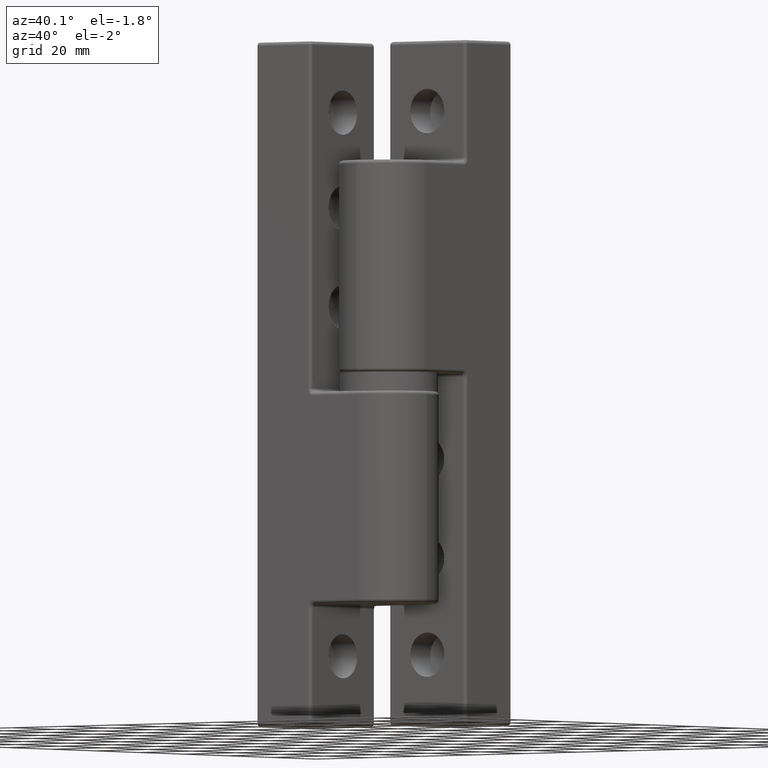
[diagram: clean part render]
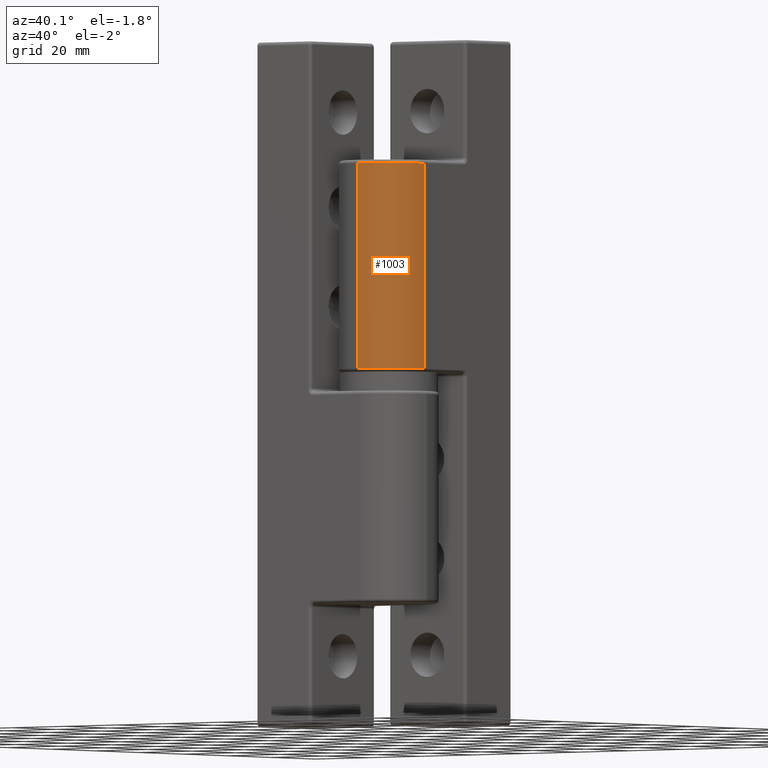
[diagram: same view with one face highlighted and labeled with its STEP entity id]
A machine part, auxiliary view. The second image highlights one B-rep face of the part: STEP entity #1003.
In plain terms, the highlighted cylindrical surface (partial cylindrical patch) has radius 14 mm, axis along (-0, 0, -1).
Its self-contained STEP definition (entity closure, byte-faithful):
#151=LINE('',#1859,#195);
#152=LINE('',#1861,#196);
#195=VECTOR('',#1417,60.);
#196=VECTOR('',#1420,60.);
#216=CYLINDRICAL_SURFACE('',#1129,14.);
#270=FACE_OUTER_BOUND('',#348,.T.);
#348=EDGE_LOOP('',(#871,#872,#873,#874));
#422=CIRCLE('',#1055,14.);
#452=CIRCLE('',#1114,14.);
#507=VERTEX_POINT('',#1642);
#509=VERTEX_POINT('',#1648);
#550=VERTEX_POINT('',#1821);
#552=VERTEX_POINT('',#1827);
#596=EDGE_CURVE('',#509,#507,#422,.T.);
#661=EDGE_CURVE('',#552,#550,#452,.T.);
#679=EDGE_CURVE('',#509,#550,#151,.T.);
#680=EDGE_CURVE('',#507,#552,#152,.T.);
#871=ORIENTED_EDGE('',*,*,#596,.F.);
#872=ORIENTED_EDGE('',*,*,#679,.T.);
#873=ORIENTED_EDGE('',*,*,#661,.F.);
#874=ORIENTED_EDGE('',*,*,#680,.F.);
#1003=ADVANCED_FACE('',(#270),#216,.T.);
#1055=AXIS2_PLACEMENT_3D('',#1650,#1229,#1230);
#1114=AXIS2_PLACEMENT_3D('',#1829,#1374,#1375);
#1129=AXIS2_PLACEMENT_3D('',#1860,#1418,#1419);
#1229=DIRECTION('center_axis',(0.,0.,-1.));
#1230=DIRECTION('ref_axis',(0.700275940529395,0.713872262464141,0.));
#1374=DIRECTION('center_axis',(0.,0.,1.));
#1375=DIRECTION('ref_axis',(0.700275940529395,0.713872262464141,0.));
#1417=DIRECTION('',(0.,0.,1.));
#1418=DIRECTION('center_axis',(0.,0.,1.));
#1419=DIRECTION('ref_axis',(0.999815140029847,0.0192272142313435,0.));
#1420=DIRECTION('',(0.,0.,1.));
#1642=CARTESIAN_POINT('',(14.2640542115531,38.2691809992388,-63.5));
#1648=CARTESIAN_POINT('',(0.266642251135247,52.,-63.5));
#1650=CARTESIAN_POINT('Origin',(0.266642251135253,38.,-63.5));
#1821=CARTESIAN_POINT('',(0.266642251135247,52.,-3.5));
#1827=CARTESIAN_POINT('',(14.2640542115531,38.2691809992388,-3.5));
#1829=CARTESIAN_POINT('Origin',(0.266642251135253,38.,-3.5));
#1859=CARTESIAN_POINT('',(0.266642251135247,52.,0.));
#1860=CARTESIAN_POINT('Origin',(0.266642251135253,38.,0.));
#1861=CARTESIAN_POINT('',(14.2640542115531,38.2691809992388,0.));